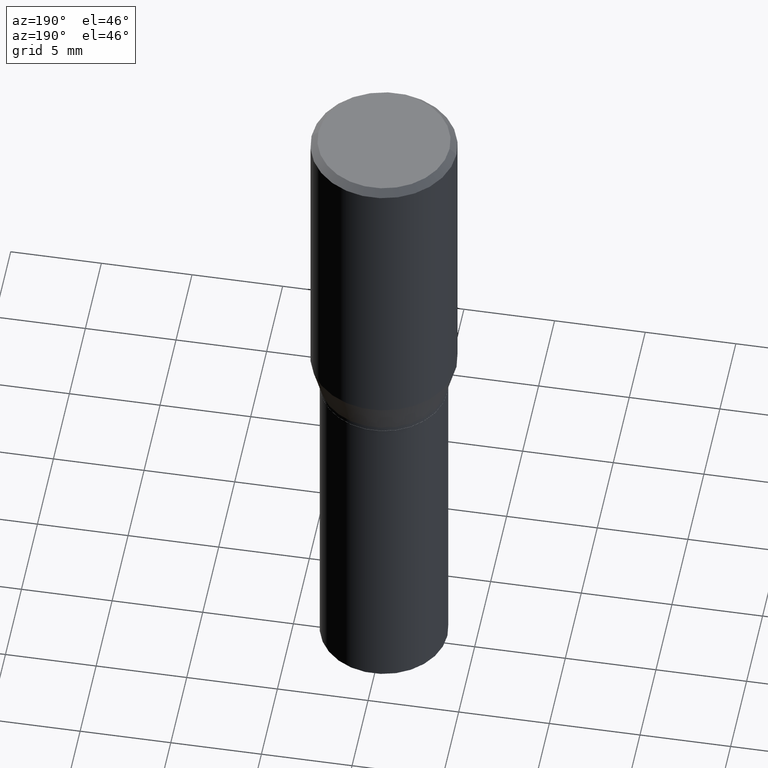
[diagram: clean part render]
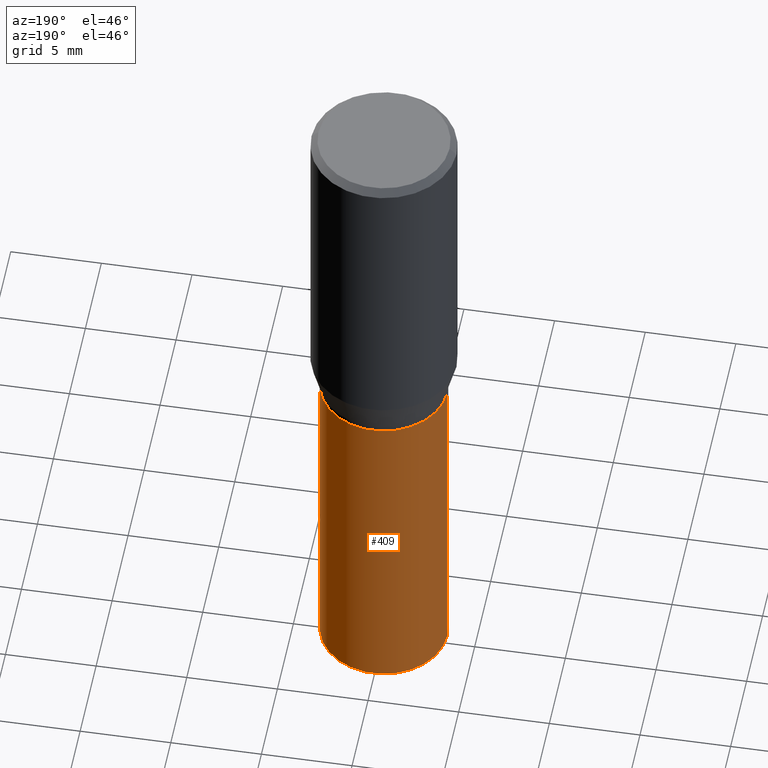
[diagram: same view with one face highlighted and labeled with its STEP entity id]
A machine part, auxiliary view. The second image highlights one B-rep face of the part: STEP entity #409.
In plain terms, the highlighted cylindrical surface (partial cylindrical patch) has radius 3.5001 mm, axis along (-0, 0, 1).
Its self-contained STEP definition (entity closure, byte-faithful):
#2 = CIRCLE ( 'NONE', #464, 0.1378000000000000058 ) ;
#7 = ORIENTED_EDGE ( 'NONE', *, *, #97, .F. ) ;
#17 = LINE ( 'NONE', #144, #34 ) ;
#34 = VECTOR ( 'NONE', #110, 39.37007874015748143 ) ;
#35 = ORIENTED_EDGE ( 'NONE', *, *, #317, .F. ) ;
#60 = CARTESIAN_POINT ( 'NONE',  ( -0.1378000000000000058, -2.952280097659963937E-15, -0.7520000000000001128 ) ) ;
#74 = DIRECTION ( 'NONE',  ( 1.000000000000000000, -6.982962677686265922E-15, 0.000000000000000000 ) ) ;
#85 = VECTOR ( 'NONE', #188, 39.37007874015748143 ) ;
#91 = EDGE_CURVE ( 'NONE', #450, #444, #2, .T. ) ;
#97 = EDGE_CURVE ( 'NONE', #450, #418, #149, .T. ) ;
#110 = DIRECTION ( 'NONE',  ( -2.445468806185136877E-29, 3.491481338843145188E-15, 1.000000000000000000 ) ) ;
#116 = CARTESIAN_POINT ( 'NONE',  ( 0.000000000000000000, 0.000000000000000000, 0.000000000000000000 ) ) ;
#144 = CARTESIAN_POINT ( 'NONE',  ( -0.1378000000000000058, 9.791278898774180975E-16, -6.778292554371260034E-30 ) ) ;
#146 = DIRECTION ( 'NONE',  ( -2.445468806185136597E-29, 3.491481338843145583E-15, 1.000000000000000000 ) ) ;
#149 = LINE ( 'NONE', #339, #85 ) ;
#151 = CARTESIAN_POINT ( 'NONE',  ( -0.1378000000000000058, -2.952280097659963937E-15, -1.500000000000000222 ) ) ;
#188 = DIRECTION ( 'NONE',  ( -2.445468806185136877E-29, 3.491481338843145188E-15, 1.000000000000000000 ) ) ;
#223 = CARTESIAN_POINT ( 'NONE',  ( 0.1378000000000000058, -6.199474265249886443E-15, -1.500000000000000222 ) ) ;
#229 = ORIENTED_EDGE ( 'NONE', *, *, #91, .T. ) ;
#247 = EDGE_LOOP ( 'NONE', ( #229, #380, #35, #7 ) ) ;
#262 = DIRECTION ( 'NONE',  ( 1.000000000000000000, -6.982962677686265922E-15, 0.000000000000000000 ) ) ;
#265 = DIRECTION ( 'NONE',  ( -2.445468806185136597E-29, 3.491481338843145583E-15, 1.000000000000000000 ) ) ;
#312 = AXIS2_PLACEMENT_3D ( 'NONE', #116, #146, #422 ) ;
#315 = EDGE_CURVE ( 'NONE', #444, #343, #17, .T. ) ;
#317 = EDGE_CURVE ( 'NONE', #418, #343, #321, .T. ) ;
#318 = DIRECTION ( 'NONE',  ( -2.445468806185136597E-29, 3.491481338843145583E-15, 1.000000000000000000 ) ) ;
#321 = CIRCLE ( 'NONE', #392, 0.1378000000000000058 ) ;
#339 = CARTESIAN_POINT ( 'NONE',  ( 0.1378000000000000058, -9.622522569851676742E-16, 6.719371597046799937E-30 ) ) ;
#343 = VERTEX_POINT ( 'NONE', #60 ) ;
#345 = FACE_OUTER_BOUND ( 'NONE', #247, .T. ) ;
#373 = CARTESIAN_POINT ( 'NONE',  ( 1.838992542251222813E-29, -2.625593966810045497E-15, -0.7520000000000001128 ) ) ;
#380 = ORIENTED_EDGE ( 'NONE', *, *, #315, .T. ) ;
#392 = AXIS2_PLACEMENT_3D ( 'NONE', #373, #318, #74 ) ;
#409 = ADVANCED_FACE ( 'NONE', ( #345 ), #460, .T. ) ;
#416 = CARTESIAN_POINT ( 'NONE',  ( 0.1378000000000000058, -3.587846223795212974E-15, -0.7520000000000001128 ) ) ;
#418 = VERTEX_POINT ( 'NONE', #416 ) ;
#422 = DIRECTION ( 'NONE',  ( 1.000000000000000000, -6.982962677686267499E-15, 4.876176775795935793E-29 ) ) ;
#444 = VERTEX_POINT ( 'NONE', #151 ) ;
#450 = VERTEX_POINT ( 'NONE', #223 ) ;
#458 = CARTESIAN_POINT ( 'NONE',  ( 3.668203209277704895E-29, -5.237222008264718177E-15, -1.500000000000000222 ) ) ;
#460 = CYLINDRICAL_SURFACE ( 'NONE', #312, 0.1378000000000000058 ) ;
#464 = AXIS2_PLACEMENT_3D ( 'NONE', #458, #265, #262 ) ;